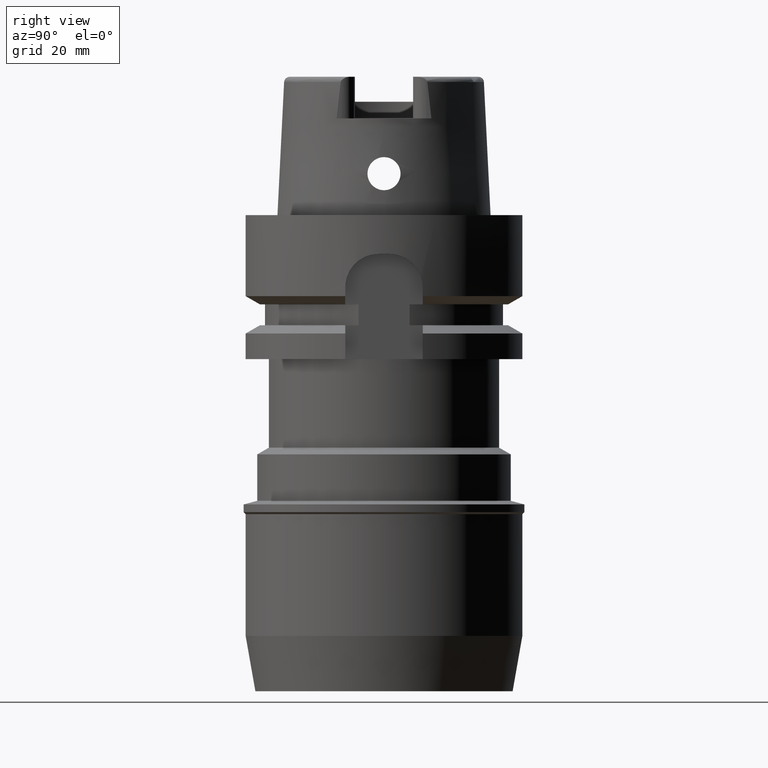
[diagram: clean part render]
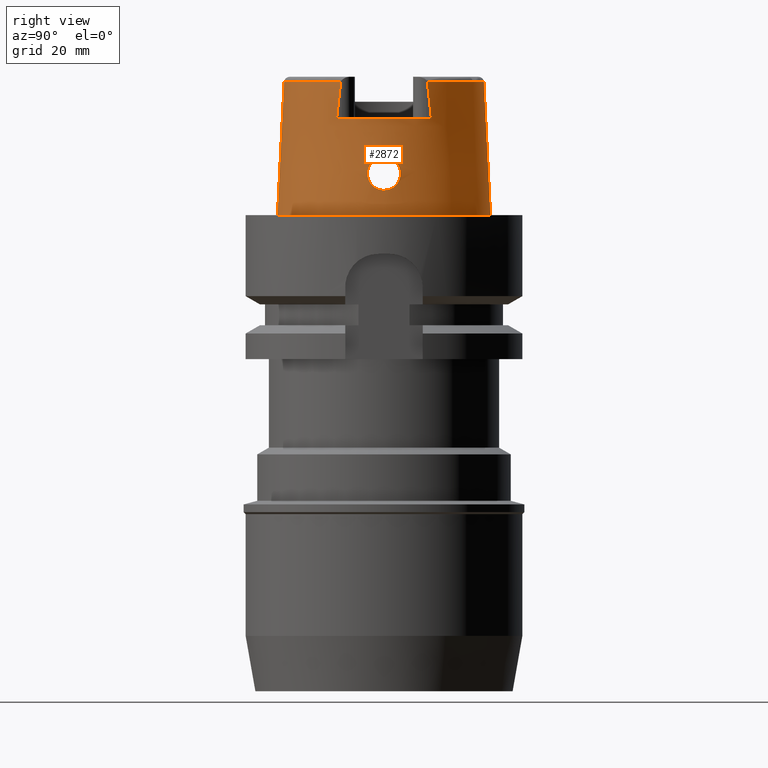
[diagram: same view with one face highlighted and labeled with its STEP entity id]
A machine part, right view. The second image highlights one B-rep face of the part: STEP entity #2872.
In plain terms, the highlighted conical surface has half-angle 2.862 deg.
Its self-contained STEP definition (entity closure, byte-faithful):
#250=CARTESIAN_POINT('',(1.626000240863E1,-7.831001017387E0,2.404998234644E1));
#255=CARTESIAN_POINT('',(0.E0,0.E0,2.404993752584E1));
#256=DIRECTION('',(0.E0,0.E0,-1.E0));
#257=DIRECTION('',(9.009559685362E-1,-4.339105239091E-1,0.E0));
#258=AXIS2_PLACEMENT_3D('',#255,#256,#257);
#289=DIRECTION('',(0.E0,-4.993752584487E-2,-9.987523434328E-1));
#290=VECTOR('',#289,2.407998107236E1);
#291=CARTESIAN_POINT('',(0.E0,-1.804750486565E1,2.404993752584E1));
#292=LINE('',#291,#290);
#344=CARTESIAN_POINT('',(1.625999792225E1,8.558809559570E0,1.75E1));
#345=CARTESIAN_POINT('',(1.625999792225E1,8.480097850170E0,1.823325708259E1));
#346=CARTESIAN_POINT('',(1.625999981681E1,8.321459503316E0,1.969614759543E1));
#347=CARTESIAN_POINT('',(1.626000375779E1,8.078776167071E0,2.187941080630E1));
#348=CARTESIAN_POINT('',(1.625999135394E1,7.914273175098E0,2.332776388619E1));
#349=CARTESIAN_POINT('',(1.625999135394E1,7.831075758587E0,2.404977624714E1));
#354=DIRECTION('',(0.E0,4.993752584487E-2,-9.987523434328E-1));
#355=VECTOR('',#354,2.407998107236E1);
#356=CARTESIAN_POINT('',(0.E0,1.804750486565E1,2.404993752584E1));
#357=LINE('',#356,#355);
#361=CARTESIAN_POINT('',(1.626000240863E1,-7.831001017387E0,2.404998234644E1));
#362=CARTESIAN_POINT('',(1.626000240863E1,-7.914223173927E0,2.332776163473E1));
#363=CARTESIAN_POINT('',(1.626000011532E1,-8.078847148284E0,2.187971683011E1));
#364=CARTESIAN_POINT('',(1.625999598344E1,-8.321539115257E0,1.969639162742E1));
#365=CARTESIAN_POINT('',(1.626000929510E1,-8.480037106998E0,1.823335843826E1));
#366=CARTESIAN_POINT('',(1.626000929510E1,-8.558760292650E0,1.75E1));
#371=CARTESIAN_POINT('',(1.872500050292E1,-7.067677425114E-14,1.05E1));
#372=CARTESIAN_POINT('',(1.872500050292E1,-2.616930760922E-1,1.05E1));
#373=CARTESIAN_POINT('',(1.871722176E1,-7.855282250816E-1,1.043111835390E1));
#374=CARTESIAN_POINT('',(1.868622414174E1,-1.519133373539E0,1.012713982800E1));
#375=CARTESIAN_POINT('',(1.864719899712E1,-2.149448491547E0,9.642128510571E0));
#376=CARTESIAN_POINT('',(1.861577449161E1,-2.630322698088E0,9.012910819463E0));
#377=CARTESIAN_POINT('',(1.860667619717E1,-2.931351445992E0,8.282572949625E0));
#378=CARTESIAN_POINT('',(1.862928170891E1,-3.033823834171E0,7.504750721001E0));
#379=CARTESIAN_POINT('',(1.868529129189E1,-2.933335117594E0,6.723950425877E0));
#380=CARTESIAN_POINT('',(1.876803572350E1,-2.632962472457E0,5.991238797218E0));
#381=CARTESIAN_POINT('',(1.886281229088E1,-2.150157901175E0,5.357823148049E0));
#382=CARTESIAN_POINT('',(1.895033128320E1,-1.514640032650E0,4.869891064827E0));
#383=CARTESIAN_POINT('',(1.901078475104E1,-7.799382890987E-1,4.567611549194E0));
#384=CARTESIAN_POINT('',(1.902499995428E1,-2.592351114921E-1,4.5E0));
#385=CARTESIAN_POINT('',(1.902499995428E1,0.E0,4.5E0));
#390=CARTESIAN_POINT('',(1.902499995428E1,0.E0,4.5E0));
#391=CARTESIAN_POINT('',(1.902499995428E1,2.589998631049E-1,4.5E0));
#392=CARTESIAN_POINT('',(1.901077289706E1,7.777917976649E-1,4.567699731869E0));
#393=CARTESIAN_POINT('',(1.895139927441E1,1.503442959640E0,4.864515691589E0));
#394=CARTESIAN_POINT('',(1.886512341763E1,2.136010471608E0,5.344188859845E0));
#395=CARTESIAN_POINT('',(1.877025024718E1,2.623646345293E0,5.974268210436E0));
#396=CARTESIAN_POINT('',(1.868622090140E1,2.931175059440E0,6.712673625001E0));
#397=CARTESIAN_POINT('',(1.862932037405E1,3.034455176769E0,7.501900978830E0));
#398=CARTESIAN_POINT('',(1.860663084730E1,2.931003551082E0,8.284678908952E0));
#399=CARTESIAN_POINT('',(1.861585418250E1,2.629199813223E0,9.014376402418E0));
#400=CARTESIAN_POINT('',(1.864711708942E1,2.150600073947E0,9.640567156560E0));
#401=CARTESIAN_POINT('',(1.868606447038E1,1.522073299571E0,1.012547347918E1));
#402=CARTESIAN_POINT('',(1.871718140176E1,7.874209746032E-1,1.043077401507E1));
#403=CARTESIAN_POINT('',(1.872500050292E1,2.624486671644E-1,1.05E1));
#404=CARTESIAN_POINT('',(1.872500050292E1,-7.067677425114E-14,1.05E1));
#439=CARTESIAN_POINT('',(0.E0,0.E0,1.75E1));
#440=DIRECTION('',(0.E0,0.E0,-1.E0));
#441=DIRECTION('',(8.848979041389E-1,4.657850354515E-1,0.E0));
#442=AXIS2_PLACEMENT_3D('',#439,#440,#441);
#1997=CARTESIAN_POINT('',(0.E0,0.E0,-4.547473508865E-13));
#1998=DIRECTION('',(0.E0,0.E0,1.E0));
#1999=DIRECTION('',(0.E0,-1.E0,0.E0));
#2000=AXIS2_PLACEMENT_3D('',#1997,#1998,#1999);
#2259=CARTESIAN_POINT('',(0.E0,0.E0,2.404993752584E1));
#2260=DIRECTION('',(0.E0,0.E0,-1.E0));
#2261=DIRECTION('',(0.E0,1.E0,0.E0));
#2262=AXIS2_PLACEMENT_3D('',#2259,#2260,#2261);
#2267=CARTESIAN_POINT('',(0.E0,0.E0,2.404993752584E1));
#2268=DIRECTION('',(0.E0,0.E0,-1.E0));
#2269=DIRECTION('',(8.255998758101E-4,9.999996591924E-1,0.E0));
#2270=AXIS2_PLACEMENT_3D('',#2267,#2268,#2269);
#2364=CARTESIAN_POINT('',(0.E0,1.804750486565E1,2.404993752584E1));
#2365=VERTEX_POINT('',#2364);
#2366=CARTESIAN_POINT('',(1.490001777577E-2,1.804749871493E1,2.404993752584E1));
#2367=CARTESIAN_POINT('',(1.625997406183E1,7.831071151783E0,2.404993752584E1));
#2368=VERTEX_POINT('',#2366);
#2369=VERTEX_POINT('',#2367);
#2373=VERTEX_POINT('',#250);
#2374=CARTESIAN_POINT('',(0.E0,-1.804750486565E1,2.404993752584E1));
#2375=VERTEX_POINT('',#2374);
#2378=CARTESIAN_POINT('',(0.E0,-1.924999954279E1,-4.547473508865E-13));
#2379=VERTEX_POINT('',#2378);
#2380=CARTESIAN_POINT('',(0.E0,1.924999954279E1,-4.547473508865E-13));
#2381=VERTEX_POINT('',#2380);
#2384=CARTESIAN_POINT('',(1.626E1,8.558800558816E0,1.75E1));
#2385=CARTESIAN_POINT('',(1.626E1,-8.558800558816E0,1.75E1));
#2386=VERTEX_POINT('',#2384);
#2387=VERTEX_POINT('',#2385);
#2388=VERTEX_POINT('',#371);
#2389=VERTEX_POINT('',#385);
#2844=CARTESIAN_POINT('',(0.E0,0.E0,1.202496876292E1));
#2845=DIRECTION('',(0.E0,0.E0,-1.E0));
#2846=DIRECTION('',(0.E0,-1.E0,0.E0));
#2847=AXIS2_PLACEMENT_3D('',#2844,#2845,#2846);
#2848=CONICAL_SURFACE('',#2847,1.864875220422E1,2.8624E0);
#2850=ORIENTED_EDGE('',*,*,#2849,.F.);
#2852=ORIENTED_EDGE('',*,*,#2851,.T.);
#2854=ORIENTED_EDGE('',*,*,#2853,.F.);
#2856=ORIENTED_EDGE('',*,*,#2855,.F.);
#2857=ORIENTED_EDGE('',*,*,#2829,.T.);
#2859=ORIENTED_EDGE('',*,*,#2858,.F.);
#2860=ORIENTED_EDGE('',*,*,#2825,.F.);
#2861=ORIENTED_EDGE('',*,*,#2794,.F.);
#2863=ORIENTED_EDGE('',*,*,#2862,.T.);
#2864=EDGE_LOOP('',(#2850,#2852,#2854,#2856,#2857,#2859,#2860,#2861,#2863));
#2865=FACE_OUTER_BOUND('',#2864,.F.);
#2867=ORIENTED_EDGE('',*,*,#2866,.T.);
#2869=ORIENTED_EDGE('',*,*,#2868,.T.);
#2870=EDGE_LOOP('',(#2867,#2869));
#2871=FACE_BOUND('',#2870,.F.);
#259=CIRCLE('',#258,1.804750486565E1);
#350=B_SPLINE_CURVE_WITH_KNOTS('',3,(#344,#345,#346,#347,#348,#349),
.UNSPECIFIED.,.F.,.F.,(4,1,1,4),(0.E0,3.333333333333E-1,6.666666666667E-1,1.E0),
.UNSPECIFIED.);
#367=B_SPLINE_CURVE_WITH_KNOTS('',3,(#361,#362,#363,#364,#365,#366),
.UNSPECIFIED.,.F.,.F.,(4,1,1,4),(0.E0,3.333333333333E-1,6.666666666667E-1,1.E0),
.UNSPECIFIED.);
#386=B_SPLINE_CURVE_WITH_KNOTS('',3,(#371,#372,#373,#374,#375,#376,#377,#378,
#379,#380,#381,#382,#383,#384,#385),.UNSPECIFIED.,.F.,.F.,(4,1,1,1,1,1,1,1,1,1,
1,1,4),(0.E0,8.333333333333E-2,1.666666666667E-1,2.5E-1,3.333333333333E-1,
4.166666666667E-1,5.E-1,5.833333333333E-1,6.666666666667E-1,7.5E-1,
8.333333333333E-1,9.166666666667E-1,1.E0),.UNSPECIFIED.);
#405=B_SPLINE_CURVE_WITH_KNOTS('',3,(#390,#391,#392,#393,#394,#395,#396,#397,
#398,#399,#400,#401,#402,#403,#404),.UNSPECIFIED.,.F.,.F.,(4,1,1,1,1,1,1,1,1,1,
1,1,4),(0.E0,8.333333333333E-2,1.666666666667E-1,2.5E-1,3.333333333333E-1,
4.166666666667E-1,5.E-1,5.833333333333E-1,6.666666666667E-1,7.5E-1,
8.333333333333E-1,9.166666666667E-1,1.E0),.UNSPECIFIED.);
#443=CIRCLE('',#442,1.837500114301E1);
#2001=CIRCLE('',#2000,1.924999954279E1);
#2263=CIRCLE('',#2262,1.804750486565E1);
#2271=CIRCLE('',#2270,1.804750486565E1);
#2794=EDGE_CURVE('',#2373,#2375,#259,.T.);
#2825=EDGE_CURVE('',#2375,#2379,#292,.T.);
#2829=EDGE_CURVE('',#2365,#2381,#357,.T.);
#2849=EDGE_CURVE('',#2386,#2387,#443,.T.);
#2851=EDGE_CURVE('',#2386,#2369,#350,.T.);
#2853=EDGE_CURVE('',#2368,#2369,#2271,.T.);
#2855=EDGE_CURVE('',#2365,#2368,#2263,.T.);
#2858=EDGE_CURVE('',#2379,#2381,#2001,.T.);
#2862=EDGE_CURVE('',#2373,#2387,#367,.T.);
#2866=EDGE_CURVE('',#2388,#2389,#386,.T.);
#2868=EDGE_CURVE('',#2389,#2388,#405,.T.);
#2872=ADVANCED_FACE('',(#2865,#2871),#2848,.T.);